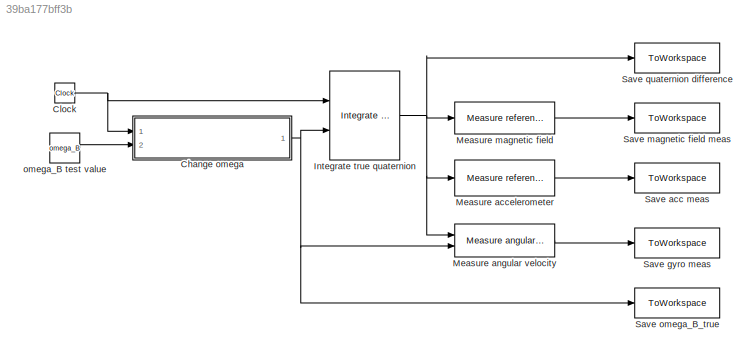
MODEL slx_39ba177bff3b
KIND model
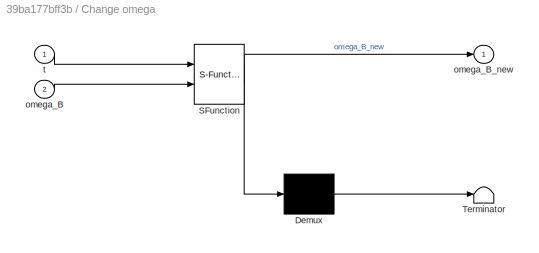
BLOCK [SubSystem] Change omega
  ErrorFcn = Stateflow.Translate.translate
  PermitHierarchicalResolution = ExplicitOnly
  Ports = [2, 1]
  RequestExecContextInheritance = off
  SFBlockType = MATLAB Function
  TreatAsAtomicUnit = on
BLOCK [Demux] Change omega/ Demux 
  Outputs = 1
  Ports = [1, 1]
BLOCK [S-Function] Change omega/ SFunction 
  EnableBusSupport = on
  FunctionName = sf_sfun
  PortCounts = [2 2]
  Ports = [2, 2]
  Tag = Stateflow S-Function gyro_synthetic_data 3
BLOCK [Terminator] Change omega/ Terminator 
BLOCK [Inport] Change omega/omega_B
  IconDisplay = Port number
  Port = 2
BLOCK [Outport] Change omega/omega_B_new
  IconDisplay = Port number
BLOCK [Inport] Change omega/t
  IconDisplay = Port number
BLOCK [Clock] Clock
BLOCK [Reference] Integrate true quaternion  REF=lib_gyro_fusion/Integrate true quaternion  (lib defined in slx_a4b6311b9d1d)
  Ports = [2, 1]
  SourceBlock = lib_gyro_fusion/Integrate true quaternion
  q_BI_init = q_init
BLOCK [Reference] Measure accelerometer  REF=lib_gyro_fusion/Measure referene direction  (lib defined in slx_a4b6311b9d1d)
  Ports = [1, 1]
  R_direction = R_acc
  SourceBlock = lib_gyro_fusion/Measure referene direction
  measurement_noise_power = acc_noise_power
  measurement_sample_rate = t_step
  ref_direction = gravity_I
  source_seeds = acc_seeds
BLOCK [Reference] Measure angular velocity  REF=lib_gyro_fusion/Measure angular velocity  (lib defined in slx_a4b6311b9d1d)
  Ports = [2, 1]
  SourceBlock = lib_gyro_fusion/Measure angular velocity
  SourceType = SubSystem
BLOCK [Reference] Measure magnetic field  REF=lib_gyro_fusion/Measure referene direction  (lib defined in slx_a4b6311b9d1d)
  Ports = [1, 1]
  R_direction = R_magnetometer
  SourceBlock = lib_gyro_fusion/Measure referene direction
  measurement_noise_power = magnetometer_noise_power
  measurement_sample_rate = t_step
  ref_direction = ref_B_I
  source_seeds = magnetometer_seeds
BLOCK [ToWorkspace] Save acc meas
  FixptAsFi = on
  MaxDataPoints = inf
  Ports = [1]
  SampleTime = -1
  Save2DSignal = 3-D array (concatenate along third dimension)
  SaveFormat = Timeseries
  VariableName = acc_B_meas
BLOCK [ToWorkspace] Save gyro meas
  FixptAsFi = on
  MaxDataPoints = inf
  Ports = [1]
  SampleTime = -1
  Save2DSignal = 3-D array (concatenate along third dimension)
  SaveFormat = Timeseries
  VariableName = omega_I_meas
BLOCK [ToWorkspace] Save magnetic field meas
  FixptAsFi = on
  MaxDataPoints = inf
  Ports = [1]
  SampleTime = -1
  Save2DSignal = 3-D array (concatenate along third dimension)
  SaveFormat = Timeseries
  VariableName = magnetic_B_meas
BLOCK [ToWorkspace] Save omega_B_true
  FixptAsFi = on
  MaxDataPoints = inf
  Ports = [1]
  SampleTime = -1
  Save2DSignal = 3-D array (concatenate along third dimension)
  SaveFormat = Timeseries
  VariableName = omega_B_true_out
BLOCK [ToWorkspace] Save quaternion difference
  FixptAsFi = on
  MaxDataPoints = inf
  Ports = [1]
  SampleTime = -1
  Save2DSignal = 3-D array (concatenate along third dimension)
  SaveFormat = Timeseries
  VariableName = q_true_out
BLOCK [Constant] omega_B test value
  Value = omega_B
NET Change omega:1 -> Integrate true quaternion:2, Measure angular velocity:2, Save omega_B_true:1
NET Clock:1 -> Change omega:1, Integrate true quaternion:1
NET Integrate true quaternion:1 -> Measure accelerometer:1, Measure angular velocity:1, Measure magnetic field:1, Save quaternion difference:1
LINE Measure accelerometer:1 -> Save acc meas:1
LINE Measure angular velocity:1 -> Save gyro meas:1
LINE Measure magnetic field:1 -> Save magnetic field meas:1
LINE omega_B test value:1 -> Change omega:2
note: NET lines group one-source signal fan-out (src -> all destinations, sorted); 1:1 wires keep LINE
